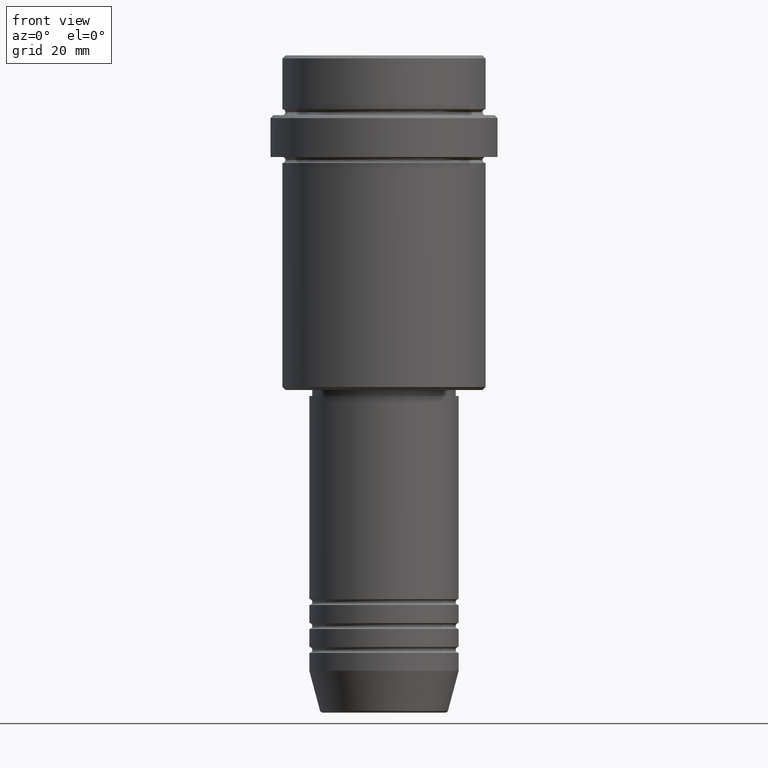
[diagram: clean part render]
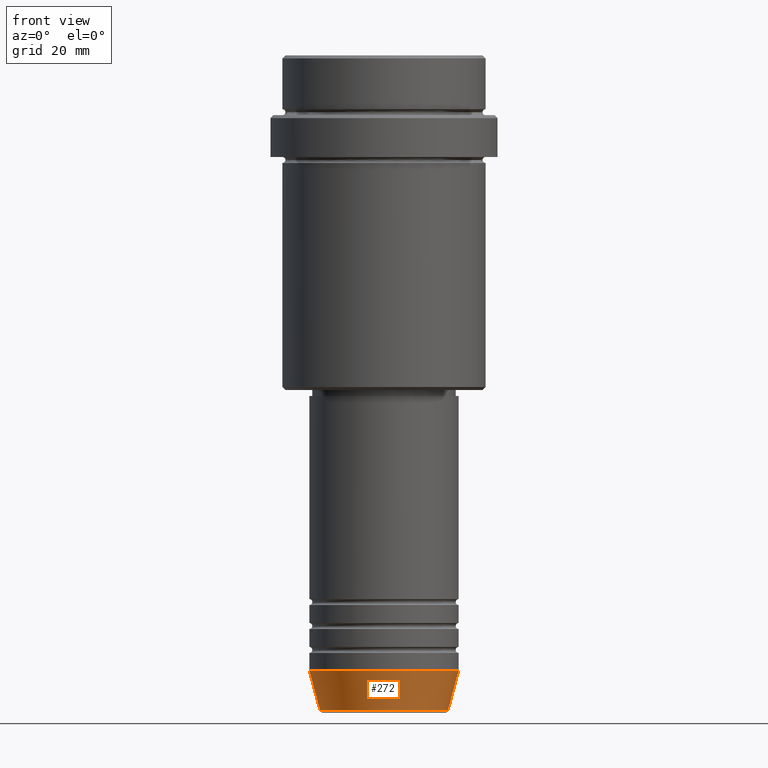
[diagram: same view with one face highlighted and labeled with its STEP entity id]
A machine part, front view. The second image highlights one B-rep face of the part: STEP entity #272.
In plain terms, the highlighted conical surface has half-angle 15 deg.
Its self-contained STEP definition (entity closure, byte-faithful):
#40 = CARTESIAN_POINT ( 'NONE',  ( 0.000000000000000000, 0.000000000000000000, -103.0000000000000142 ) ) ;
#53 = CARTESIAN_POINT ( 'NONE',  ( -12.50000000000000000, 1.530808498934191521E-15, -103.0000000000000142 ) ) ;
#121 = ORIENTED_EDGE ( 'NONE', *, *, #1134, .T. ) ;
#151 = CARTESIAN_POINT ( 'NONE',  ( 12.50000000000000000, 0.000000000000000000, -103.0000000000000142 ) ) ;
#207 = VERTEX_POINT ( 'NONE', #1145 ) ;
#229 = DIRECTION ( 'NONE',  ( 1.000000000000000000, 0.000000000000000000, 0.000000000000000000 ) ) ;
#272 = ADVANCED_FACE ( 'NONE', ( #1090 ), #849, .T. ) ;
#303 = LINE ( 'NONE', #322, #878 ) ;
#305 = DIRECTION ( 'NONE',  ( 1.000000000000000000, 0.000000000000000000, 0.000000000000000000 ) ) ;
#322 = CARTESIAN_POINT ( 'NONE',  ( 12.50000000000000000, 0.000000000000000000, -103.0000000000000142 ) ) ;
#363 = CIRCLE ( 'NONE', #684, 12.50000000000000000 ) ;
#372 = DIRECTION ( 'NONE',  ( -0.2588190451025213501, 3.169619151431772337E-17, 0.9659258262890680902 ) ) ;
#389 = VERTEX_POINT ( 'NONE', #1357 ) ;
#446 = DIRECTION ( 'NONE',  ( 1.000000000000000000, 0.000000000000000000, 0.000000000000000000 ) ) ;
#447 = VECTOR ( 'NONE', #372, 1000.000000000000000 ) ;
#501 = VERTEX_POINT ( 'NONE', #1380 ) ;
#684 = AXIS2_PLACEMENT_3D ( 'NONE', #40, #1349, #229 ) ;
#725 = EDGE_CURVE ( 'NONE', #501, #820, #363, .T. ) ;
#776 = AXIS2_PLACEMENT_3D ( 'NONE', #800, #1004, #446 ) ;
#800 = CARTESIAN_POINT ( 'NONE',  ( 0.000000000000000000, 0.000000000000000000, -109.6294095225512706 ) ) ;
#816 = LINE ( 'NONE', #53, #447 ) ;
#820 = VERTEX_POINT ( 'NONE', #151 ) ;
#849 = CONICAL_SURFACE ( 'NONE', #1147, 12.50000000000000000, 0.2617993877991500740 ) ;
#857 = EDGE_LOOP ( 'NONE', ( #1110, #121, #959, #999 ) ) ;
#878 = VECTOR ( 'NONE', #1406, 1000.000000000000000 ) ;
#895 = CIRCLE ( 'NONE', #776, 10.72365507213718416 ) ;
#959 = ORIENTED_EDGE ( 'NONE', *, *, #1001, .T. ) ;
#999 = ORIENTED_EDGE ( 'NONE', *, *, #725, .F. ) ;
#1001 = EDGE_CURVE ( 'NONE', #207, #820, #303, .T. ) ;
#1004 = DIRECTION ( 'NONE',  ( -0.000000000000000000, -0.000000000000000000, 1.000000000000000000 ) ) ;
#1090 = FACE_OUTER_BOUND ( 'NONE', #857, .T. ) ;
#1110 = ORIENTED_EDGE ( 'NONE', *, *, #1345, .F. ) ;
#1134 = EDGE_CURVE ( 'NONE', #389, #207, #895, .T. ) ;
#1145 = CARTESIAN_POINT ( 'NONE',  ( 10.72365507213718416, 0.000000000000000000, -109.6294095225512706 ) ) ;
#1147 = AXIS2_PLACEMENT_3D ( 'NONE', #1403, #1303, #305 ) ;
#1303 = DIRECTION ( 'NONE',  ( -0.000000000000000000, -0.000000000000000000, 1.000000000000000000 ) ) ;
#1345 = EDGE_CURVE ( 'NONE', #389, #501, #816, .T. ) ;
#1349 = DIRECTION ( 'NONE',  ( -0.000000000000000000, -0.000000000000000000, 1.000000000000000000 ) ) ;
#1357 = CARTESIAN_POINT ( 'NONE',  ( -10.72365507213718416, 1.422038742429749727E-15, -109.6294095225512706 ) ) ;
#1380 = CARTESIAN_POINT ( 'NONE',  ( -12.50000000000000000, 1.530808498934191521E-15, -103.0000000000000142 ) ) ;
#1403 = CARTESIAN_POINT ( 'NONE',  ( 0.000000000000000000, 0.000000000000000000, -103.0000000000000142 ) ) ;
#1406 = DIRECTION ( 'NONE',  ( 0.2588190451025213501, 0.000000000000000000, 0.9659258262890680902 ) ) ;